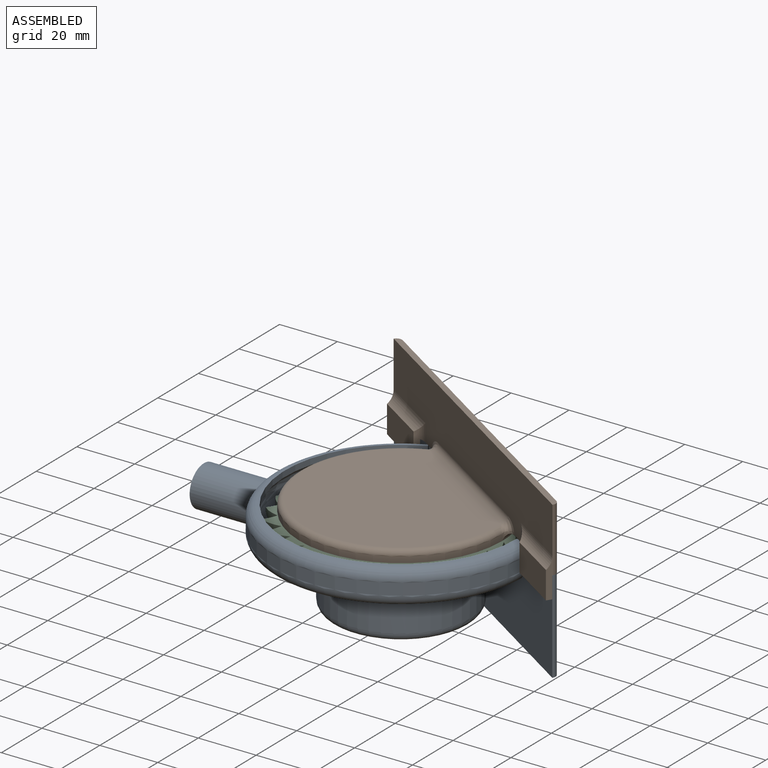
[diagram: assembled view]
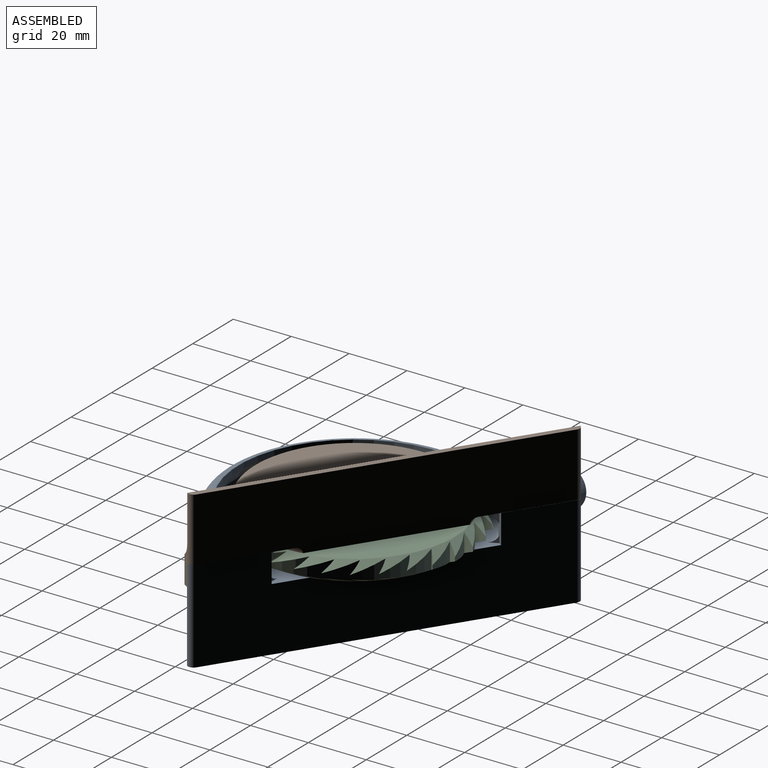
[diagram: assembled view, second angle]
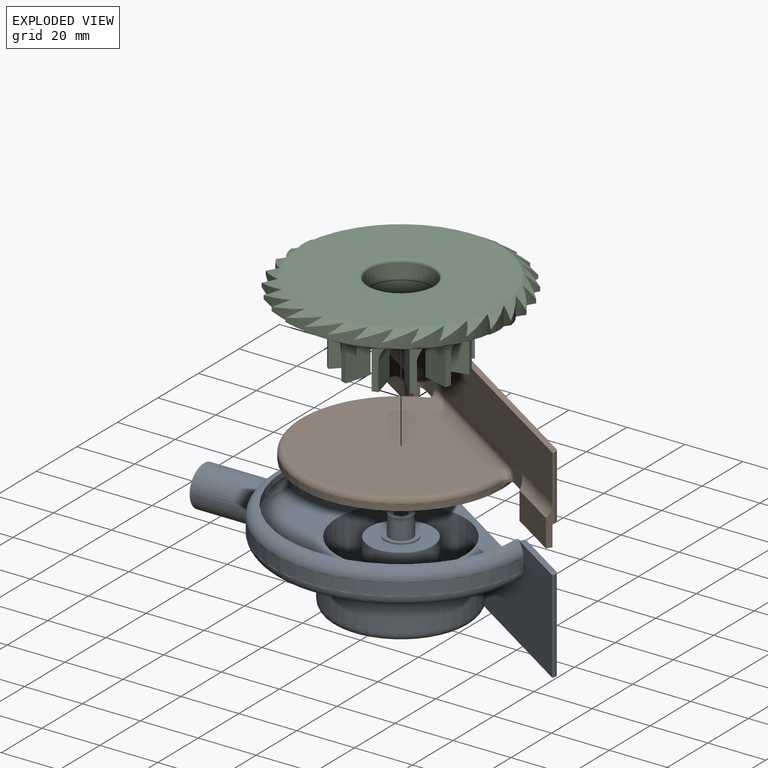
[diagram: exploded view]
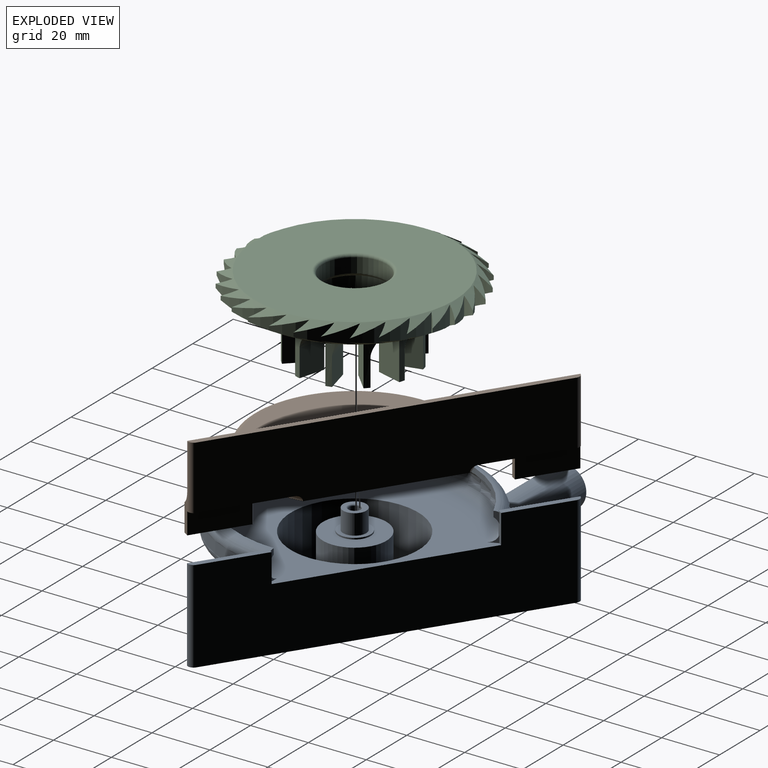
[diagram: exploded view, second angle]
ASSEMBLY  parts=3 mates=2
PART A: 43 faces, bbox 142.7x99.8x32.1 mm
  f0: plane 3.39x2.5mm, normal (0.91,0.41,0), area 2.6mm2, adj f3,f29,f39
  f1: plane 3.96x1.56mm, normal (0.91,0.41,0), area 4.5mm2, adj f21,f27,f28,f39
  f2: plane 4.1x1.76mm, normal (0,1,0), area 4.7mm2, adj f21,f27,f28,f35
  f3: plane 80.43x77.21mm, normal (0,0,1), area 2463.9mm2, adj f0,f7,f8,f29,f34,f35,f39
  f4: cylinder r=24mm len=48mm, axis (0,0,1), area 1969.9mm2, adj f5,f19,f25,f32
  f5: torus R=21mm, axis (0,0,-1), area 622.8mm2, adj f4,f18,f32
  f6: torus R=40mm, axis (0,0,1), area 1130.3mm2, adj f19,f20,f30,f31,f32
  f7: plane 3.76x2.63mm, normal (0,1,0), area 2.7mm2, adj f3,f29,f35
  f8: cylinder r=22mm len=44mm, axis (0,0,1), area 2617.7mm2, adj f3,f9,f24
  f9: plane 44x44mm, normal (0,0,1), area 1140.4mm2, adj f8,f10
  f10: cylinder r=11mm len=22mm, axis (0,0,1), area 1382.3mm2, adj f9,f11
  f11: plane 22x22mm, normal (0,0,1), area 285.1mm2, adj f10,f12
  f12: cylinder r=5.5mm len=11mm, axis (0,0,1), area 17.3mm2, adj f11,f13
  f13: plane 11x11mm, normal (0,0,1), area 44.8mm2, adj f12,f14
  f14: cylinder r=4mm len=8mm, axis (0,0,1), area 175.9mm2, adj f13,f15
  f15: plane 8x8mm, normal (0,0,1), area 30.6mm2, adj f14,f26
  f16: cylinder r=2mm len=27mm, axis (0,0,1), area 339.3mm2, adj f17,f26
  f17: plane 4x4mm, normal (0,0,1), area 12.6mm2, adj f16
  f18: plane 42x42mm, normal (0,0,-1), area 1385.4mm2, adj f5
  f19: plane 80.33x76.96mm, normal (0,0,-1), area 2396.3mm2, adj f4,f6,f30,f31,f32
  f20: cylinder r=44mm len=87.94mm, axis (0,0,1), area 737.2mm2, adj f6,f27,f32
  f21: cylinder r=40mm len=80mm, axis (0,0,1), area 343.5mm2, adj f1,f2,f27,f28
  f22: cylinder r=42mm len=83.99mm, axis (0,0,1), area 95.5mm2, adj f28,f29,f36,f38
  f23: plane 14x14mm, normal (-1,0,0), area 75.4mm2, adj f24,f25
  f24: cylinder r=5mm len=80mm, axis (1,0,0), area 2127.1mm2, adj f8,f23
  f25: cylinder r=7mm len=80mm, axis (-1,0,0), area 2868mm2, adj f4,f23
  f26: torus R=2.5mm, axis (0,0,1), area 10.8mm2, adj f15,f16
  f27: torus R=40mm, axis (0,0,1), area 1131.2mm2, adj f1,f2,f20,f21,f32,f35,f39
  f28: torus R=38mm, axis (0,0,1), area 739.3mm2, adj f1,f2,f21,f22,f35,f36,f38,f39
  f29: torus R=38mm, axis (0,0,1), area 1090.2mm2, adj f0,f3,f7,f22,f35,f36,f38,f39
  f30: plane 0.33x0.01mm, normal (0,-1,0), area 0mm2, adj f6,f19,f32
  f31: plane 0.42x0.18mm, normal (-0.91,-0.41,0), area 0mm2, adj f6,f19,f32
  f32: plane 100.58x65.45mm, normal (-0.55,-0.84,0), area 2570.2mm2, adj f4,f5,f6,f19,f20,f27,f30,f31
  f33: plane 100.9x66.36mm, normal (0,0,-1), area 238.3mm2, adj f32,f34,f41,f42
  f34: plane 97.22x63.27mm, normal (0.55,0.84,0), area 3012mm2, adj f3,f33,f35,f37,f39,f40,f41,f42
  f35: plane 10.07x1.74mm, normal (-0.84,0.55,0), area 15.7mm2, adj f2,f3,f7,f27,f28,f29,f32,f34
  f36: plane 4.94x0.65mm, normal (-0.55,-0.84,0), area 2.7mm2, adj f22,f28,f29,f35
  f37: plane 21.28x15.31mm, normal (0,0,1), area 49.1mm2, adj f32,f34,f35,f42
  f38: plane 4.94x0.65mm, normal (-0.55,-0.84,0), area 2.7mm2, adj f22,f28,f29,f39
  f39: plane 10.05x1.72mm, normal (0.84,-0.55,0), area 16.3mm2, adj f0,f1,f3,f27,f28,f29,f32,f34
  f40: plane 22.04x14.55mm, normal (0,0,1), area 49.1mm2, adj f32,f34,f39,f41
  f41: cylinder r=2mm len=32mm, axis (0,0,1), area 100.5mm2, adj f32,f33,f34,f40
  f42: cylinder r=2mm len=32mm, axis (0,0,1), area 100.5mm2, adj f32,f33,f34,f37
PART B: 37 faces, bbox 120.6x64.9x30.1 mm
  f0: plane 120x22mm, normal (0,1,0), area 2111.2mm2, adj f10,f12,f13,f25,f26,f29,f31,f32
  f1: plane 66x53mm, normal (0,0,-1), area 2944.6mm2, adj f26,f27
  f2: cylinder r=35mm len=70mm, axis (0,0,-1), area 299.9mm2, adj f4,f24,f27,f30
  f3: plane 116.6x24.6mm, normal (0,-1,0), area 2656.2mm2, adj f4,f10,f12,f13,f23,f28,f31,f32
  f4: plane 70x59mm, normal (0,0,1), area 3366.2mm2, adj f2,f3,f5,f23,f28
  f5: cylinder r=5.5mm len=11mm, axis (0,0,-1), area 17.3mm2, adj f4,f6
  f6: plane 11x11mm, normal (0,0,1), area 82.5mm2, adj f5,f7
  f7: cylinder r=2mm len=4.5mm, axis (0,0,-1), area 56.5mm2, adj f6,f22
  f8: plane 3x3mm, normal (0,0,1), area 7.1mm2, adj f22
  f9: plane 13.5x2mm, normal (-1,0,0), area 21.4mm2, adj f14,f15,f16,f32,f35
  f10: plane 31.91x4.07mm, normal (0,0,1), area 63.8mm2, adj f0,f3,f14,f17,f28,f29,f32,f36
  f11: plane 13.5x2mm, normal (1,0,0), area 21.4mm2, adj f18,f19,f20,f31,f33
  f12: plane 31.91x4.07mm, normal (0,0,1), area 63.8mm2, adj f0,f3,f18,f21,f23,f25,f31,f34
  f13: plane 120x2mm, normal (0,0,-1), area 238.3mm2, adj f0,f3,f31,f32
  f14: plane 20x7.5mm, normal (0,-1,0), area 150mm2, adj f9,f10,f15,f17
  f15: plane 20x2mm, normal (0,0,1), area 40mm2, adj f9,f14,f16,f17
  f16: plane 20x9.5mm, normal (0,1,0), area 190mm2, adj f9,f15,f17,f35,f36
  f17: plane 7.5x2mm, normal (1,0,0), area 15mm2, adj f10,f14,f15,f16
  f18: plane 20x7.5mm, normal (0,-1,0), area 150mm2, adj f11,f12,f19,f21
  f19: plane 20x2mm, normal (0,0,1), area 40mm2, adj f11,f18,f20,f21
  f20: plane 20x9.5mm, normal (0,1,0), area 190mm2, adj f11,f19,f21,f33,f34
  f21: plane 7.5x2mm, normal (-1,0,0), area 15mm2, adj f12,f18,f19,f20
  f22: torus R=1.5mm, axis (0,0,1), area 9mm2, adj f7,f8
  f23: torus R=37mm, axis (0,0,1), area 13.9mm2, adj f3,f4,f12,f24
  f24: cylinder r=2mm len=2.73mm, axis (0,0,-1), area 3.1mm2, adj f2,f23,f25
  f25: bspline ~5.07x4.78mm, area 18.3mm2, adj f0,f12,f24,f26,f27
  f26: cylinder r=2mm len=52.5mm, axis (1,0,0), area 164.9mm2, adj f0,f1,f25,f29
  f27: torus R=33mm, axis (0,0,1), area 467.1mm2, adj f1,f2,f25,f29
  f28: torus R=37mm, axis (0,0,1), area 13.9mm2, adj f3,f4,f10,f30
  f29: bspline ~5.94x4.78mm, area 18.3mm2, adj f0,f10,f26,f27,f30
  f30: cylinder r=2mm len=2.73mm, axis (0,0,-1), area 3.1mm2, adj f2,f28,f29
  f31: cylinder r=2mm len=22mm, axis (0,0,1), area 69.1mm2, adj f0,f3,f11,f12,f13
  f32: cylinder r=2mm len=22mm, axis (0,0,-1), area 69.1mm2, adj f0,f3,f9,f10,f13
  f33: cylinder r=5mm len=24mm, axis (1,0,0), area 102mm2, adj f0,f11,f20,f34
  f34: cylinder r=5mm len=6mm, axis (0,0,-1), area 18.5mm2, adj f0,f12,f20,f33
  f35: cylinder r=5mm len=24mm, axis (-1,0,0), area 102mm2, adj f0,f9,f16,f36
  f36: cylinder r=5mm len=6mm, axis (0,0,1), area 18.5mm2, adj f0,f10,f16,f35
PART C: 130 faces, bbox 78.9x78.9x27 mm
  f0: plane 69.1x69.1mm, normal (0,0,1), area 2358.1mm2, adj f33,f70
  f1: cylinder r=20.8mm len=6.56mm, axis (0,0,1), area 21.3mm2, adj f32,f33,f65,f67
  f2: cylinder r=20.8mm len=6.56mm, axis (0,0,1), area 21.3mm2, adj f32,f33,f64,f65
  f3: cylinder r=20.8mm len=6.56mm, axis (0,0,1), area 21.3mm2, adj f32,f33,f63,f64
  f4: cylinder r=20.8mm len=6.56mm, axis (0,0,1), area 21.3mm2, adj f32,f33,f62,f63
  f5: cylinder r=20.8mm len=6.56mm, axis (0,0,1), area 21.3mm2, adj f32,f33,f61,f62
  f6: cylinder r=20.8mm len=6.56mm, axis (0,0,1), area 21.3mm2, adj f32,f33,f60,f61
  f7: cylinder r=20.8mm len=6.56mm, axis (0,0,1), area 21.3mm2, adj f32,f33,f59,f60
  f8: cylinder r=20.8mm len=6.56mm, axis (0,0,1), area 21.3mm2, adj f32,f33,f58,f59
  f9: cylinder r=20.8mm len=6.56mm, axis (0,0,1), area 21.3mm2, adj f32,f33,f57,f58
  f10: cylinder r=20.8mm len=6.56mm, axis (0,0,1), area 21.3mm2, adj f32,f33,f56,f57
  f11: cylinder r=20.8mm len=6.56mm, axis (0,0,1), area 21.3mm2, adj f32,f33,f55,f56
  f12: cylinder r=20.8mm len=6.56mm, axis (0,0,1), area 21.3mm2, adj f32,f33,f54,f55
  f13: cylinder r=20.8mm len=6.56mm, axis (0,0,1), area 21.3mm2, adj f32,f33,f53,f54
  f14: cylinder r=20.8mm len=6.56mm, axis (0,0,1), area 21.3mm2, adj f32,f34,f52,f53
  f15: cylinder r=20.8mm len=6.56mm, axis (0,0,1), area 21.3mm2, adj f32,f33,f51,f52
  f16: cylinder r=20.8mm len=6.56mm, axis (0,0,1), area 21.3mm2, adj f32,f33,f50,f51
  f17: cylinder r=20.8mm len=6.56mm, axis (0,0,1), area 21.3mm2, adj f32,f33,f49,f50
  f18: cylinder r=20.8mm len=6.56mm, axis (0,0,1), area 21.3mm2, adj f32,f33,f48,f49
  f19: cylinder r=20.8mm len=6.56mm, axis (0,0,1), area 21.3mm2, adj f32,f33,f47,f48
  f20: cylinder r=20.8mm len=6.56mm, axis (0,0,1), area 21.3mm2, adj f32,f33,f46,f47
  f21: cylinder r=20.8mm len=6.56mm, axis (0,0,1), area 21.3mm2, adj f32,f33,f45,f46
  f22: cylinder r=20.8mm len=6.56mm, axis (0,0,1), area 21.3mm2, adj f32,f33,f44,f45
  f23: cylinder r=20.8mm len=6.56mm, axis (0,0,1), area 21.3mm2, adj f32,f33,f43,f44
  f24: cylinder r=20.8mm len=6.56mm, axis (0,0,1), area 21.3mm2, adj f32,f33,f42,f43
  f25: cylinder r=20.8mm len=6.56mm, axis (0,0,1), area 21.3mm2, adj f32,f33,f41,f42
  f26: cylinder r=20.8mm len=6.56mm, axis (0,0,1), area 21.3mm2, adj f32,f33,f40,f41
  f27: cylinder r=20.8mm len=6.56mm, axis (0,0,1), area 21.3mm2, adj f32,f33,f39,f40
  f28: cylinder r=20.8mm len=6.56mm, axis (0,0,1), area 21.3mm2, adj f32,f33,f38,f39
  f29: cylinder r=20.8mm len=6.56mm, axis (0,0,1), area 21.3mm2, adj f32,f33,f37,f38
  f30: cylinder r=11.05mm len=22.1mm, axis (0,0,1), area 347.1mm2, adj f35,f36
  f31: plane 69.1x69.1mm, normal (0,0,-1), area 3294mm2, adj f32,f36
  f32: cone r=40.61mm half-angle=60deg, axis (0,0,1), area 691.3mm2, adj f1,f2,f3,f4,f5,f6,f7,f8
  f33: cone r=34.55mm half-angle=60deg, axis (0,0,-1), area 685.8mm2, adj f0,f1,f2,f3,f4,f5,f6,f7
  f34: cone r=34.55mm half-angle=60deg, axis (0,0,-1), area 5.6mm2, adj f14,f33,f53
  f35: torus R=12.05mm, axis (0,0,1), area 112.6mm2, adj f30,f68
  f36: torus R=12.05mm, axis (0,0,1), area 112.6mm2, adj f30,f31
  f37: cylinder r=36.17mm len=11.25mm, axis (0,0,1), area 46mm2, adj f29,f32,f33,f66
  f38: cylinder r=36.17mm len=10.45mm, axis (0,0,1), area 45.8mm2, adj f28,f29,f32,f33
  f39: cylinder r=36.17mm len=9.19mm, axis (0,0,1), area 46mm2, adj f27,f28,f32,f33
  f40: cylinder r=36.17mm len=8.77mm, axis (0,0,1), area 46mm2, adj f26,f27,f32,f33
  f41: cylinder r=36.17mm len=10.15mm, axis (0,0,1), area 46mm2, adj f25,f26,f32,f33
  f42: cylinder r=36.17mm len=11.08mm, axis (0,0,1), area 46mm2, adj f24,f25,f32,f33
  f43: cylinder r=36.17mm len=11.53mm, axis (0,0,1), area 46mm2, adj f23,f24,f32,f33
  f44: cylinder r=36.17mm len=11.47mm, axis (0,0,1), area 46mm2, adj f22,f23,f32,f33
  f45: cylinder r=36.17mm len=10.91mm, axis (0,0,1), area 46mm2, adj f21,f22,f32,f33
  f46: cylinder r=36.17mm len=9.88mm, axis (0,0,1), area 46mm2, adj f20,f21,f32,f33
  f47: cylinder r=36.17mm len=8.41mm, axis (0,0,1), area 46mm2, adj f19,f20,f32,f33
  f48: cylinder r=36.17mm len=9.51mm, axis (0,0,1), area 46mm2, adj f18,f19,f32,f33
  f49: cylinder r=36.17mm len=10.67mm, axis (0,0,1), area 46mm2, adj f17,f18,f32,f33
  f50: cylinder r=36.17mm len=11.36mm, axis (0,0,1), area 46mm2, adj f16,f17,f32,f33
  f51: cylinder r=36.17mm len=11.56mm, axis (0,0,1), area 46mm2, adj f15,f16,f32,f33
  f52: cylinder r=36.17mm len=11.25mm, axis (0,0,1), area 46mm2, adj f14,f15,f32,f33
  f53: cylinder r=36.17mm len=10.45mm, axis (0,0,1), area 45.8mm2, adj f13,f14,f32,f33,f34
  f54: cylinder r=36.17mm len=9.19mm, axis (0,0,1), area 46mm2, adj f12,f13,f32,f33
  f55: cylinder r=36.17mm len=8.77mm, axis (0,0,1), area 46mm2, adj f11,f12,f32,f33
  f56: cylinder r=36.17mm len=10.15mm, axis (0,0,1), area 46mm2, adj f10,f11,f32,f33
  f57: cylinder r=36.17mm len=11.08mm, axis (0,0,1), area 46mm2, adj f9,f10,f32,f33
  f58: cylinder r=36.17mm len=11.53mm, axis (0,0,1), area 46mm2, adj f8,f9,f32,f33
  f59: cylinder r=36.17mm len=11.47mm, axis (0,0,1), area 46mm2, adj f7,f8,f32,f33
  f60: cylinder r=36.17mm len=10.91mm, axis (0,0,1), area 46mm2, adj f6,f7,f32,f33
  f61: cylinder r=36.17mm len=9.88mm, axis (0,0,1), area 46mm2, adj f5,f6,f32,f33
  f62: cylinder r=36.17mm len=8.41mm, axis (0,0,1), area 46mm2, adj f4,f5,f32,f33
  f63: cylinder r=36.17mm len=9.51mm, axis (0,0,1), area 46mm2, adj f3,f4,f32,f33
  f64: cylinder r=36.17mm len=10.67mm, axis (0,0,1), area 46mm2, adj f2,f3,f32,f33
  f65: cylinder r=36.17mm len=11.36mm, axis (0,0,1), area 46mm2, adj f1,f2,f32,f33
  f66: cylinder r=20.8mm len=6.56mm, axis (0,0,1), area 21.3mm2, adj f32,f33,f37,f67
  f67: cylinder r=36.17mm len=11.56mm, axis (0,0,1), area 46mm2, adj f1,f32,f33,f66
  f68: cylinder r=12.05mm len=24.1mm, axis (0,0,-1), area 853.6mm2, adj f35,f69,f71,f72,f73,f74,f75,f76
  f69: plane 9.5x9.02mm, normal (0,-1,0), area 85.7mm2, adj f68,f70,f72,f129
  f70: cylinder r=21.05mm len=42.1mm, axis (0,0,-1), area 947mm2, adj f0,f69,f71,f72,f73,f74,f75,f76
  f71: plane 18x9.02mm, normal (0,1,0), area 156.3mm2, adj f68,f70,f72,f107,f118
  f72: plane 9.04x2mm, normal (0,0,1), area 18mm2, adj f68,f69,f70,f71
  f73: plane 9.5x7.81mm, normal (-0.5,-0.87,0), area 85.7mm2, adj f68,f70,f75,f128
  f74: plane 18x7.81mm, normal (0.5,0.87,0), area 156.3mm2, adj f68,f70,f75,f117,f129
  f75: plane 8.81x6.24mm, normal (0,0,1), area 18mm2, adj f68,f70,f73,f74
  f76: plane 9.5x7.81mm, normal (-0.87,-0.5,0), area 85.7mm2, adj f68,f70,f78,f127
  f77: plane 18x7.81mm, normal (0.87,0.5,0), area 156.3mm2, adj f68,f70,f78,f116,f128
  f78: plane 8.81x6.24mm, normal (0,0,1), area 18mm2, adj f68,f70,f76,f77
  f79: plane 9.5x9.02mm, normal (-1,0,0), area 85.7mm2, adj f68,f70,f81,f126
  f80: plane 18x9.02mm, normal (1,0,0), area 156.3mm2, adj f68,f70,f81,f115,f127
  f81: plane 9.04x2mm, normal (0,0,1), area 18mm2, adj f68,f70,f79,f80
  f82: plane 9.5x7.81mm, normal (-0.87,0.5,0), area 85.7mm2, adj f68,f70,f84,f125
  f83: plane 18x7.81mm, normal (0.87,-0.5,0), area 156.3mm2, adj f68,f70,f84,f114,f126
  f84: plane 8.81x6.24mm, normal (0,0,1), area 18mm2, adj f68,f70,f82,f83
  f85: plane 9.5x7.81mm, normal (-0.5,0.87,0), area 85.7mm2, adj f68,f70,f87,f124
  f86: plane 18x7.81mm, normal (0.5,-0.87,0), area 156.3mm2, adj f68,f70,f87,f113,f125
  f87: plane 8.81x6.24mm, normal (0,0,1), area 18mm2, adj f68,f70,f85,f86
  f88: plane 9.5x9.02mm, normal (0,1,0), area 85.7mm2, adj f68,f70,f90,f123
  f89: plane 18x9.02mm, normal (0,-1,0), area 156.3mm2, adj f68,f70,f90,f112,f124
  f90: plane 9.04x2mm, normal (0,0,1), area 18mm2, adj f68,f70,f88,f89
  f91: plane 9.5x7.81mm, normal (0.5,0.87,0), area 85.7mm2, adj f68,f70,f93,f122
  f92: plane 18x7.81mm, normal (-0.5,-0.87,0), area 156.3mm2, adj f68,f70,f93,f111,f123
  f93: plane 8.81x6.24mm, normal (0,0,1), area 18mm2, adj f68,f70,f91,f92
  f94: plane 9.5x7.81mm, normal (0.87,0.5,0), area 85.7mm2, adj f68,f70,f96,f121
  f95: plane 18x7.81mm, normal (-0.87,-0.5,0), area 156.3mm2, adj f68,f70,f96,f110,f122
  f96: plane 8.81x6.24mm, normal (0,0,1), area 18mm2, adj f68,f70,f94,f95
  f97: plane 9.5x9.02mm, normal (1,0,0), area 85.7mm2, adj f68,f70,f99,f120
  f98: plane 18x9.02mm, normal (-1,0,0), area 156.3mm2, adj f68,f70,f99,f109,f121
  f99: plane 9.04x2mm, normal (0,0,1), area 18mm2, adj f68,f70,f97,f98
  f100: plane 9.5x7.81mm, normal (0.87,-0.5,0), area 85.7mm2, adj f68,f70,f102,f119
  f101: plane 18x7.81mm, normal (-0.87,0.5,0), area 156.3mm2, adj f68,f70,f102,f108,f120
  f102: plane 8.81x6.24mm, normal (0,0,1), area 18mm2, adj f68,f70,f100,f101
  f103: plane 9.5x7.81mm, normal (0.5,-0.87,0), area 85.7mm2, adj f68,f70,f105,f118
  f104: plane 18x7.81mm, normal (-0.5,0.87,0), area 156.3mm2, adj f68,f70,f105,f106,f119
  f105: plane 8.81x6.24mm, normal (0,0,1), area 18mm2, adj f68,f70,f103,f104
  f106: plane 0.29x0.25mm, normal (0,0,1), area 0mm2, adj f70,f104,f119
  f107: plane 0.29x0.17mm, normal (0,0,1), area 0mm2, adj f70,f71,f118
  f108: plane 0.33x0.15mm, normal (0,0,1), area 0mm2, adj f70,f101,f120
  f109: plane 0.29x0.17mm, normal (0,0,1), area 0mm2, adj f70,f98,f121
  f110: plane 0.29x0.25mm, normal (0,0,1), area 0mm2, adj f70,f95,f122
  f111: plane 0.33x0.15mm, normal (0,0,1), area 0mm2, adj f70,f92,f123
  f112: plane 0.29x0.17mm, normal (0,0,1), area 0mm2, adj f70,f89,f124
  f113: plane 0.29x0.25mm, normal (0,0,1), area 0mm2, adj f70,f86,f125
  f114: plane 0.33x0.15mm, normal (0,0,1), area 0mm2, adj f70,f83,f126
  f115: plane 0.29x0.17mm, normal (0,0,1), area 0mm2, adj f70,f80,f127
  f116: plane 0.29x0.25mm, normal (0,0,1), area 0mm2, adj f70,f77,f128
  f117: plane 0.33x0.15mm, normal (0,0,1), area 0mm2, adj f70,f74,f129
  f118: bspline ~13.41x12.65mm, area 98.3mm2, adj f68,f70,f71,f103,f107
  f119: bspline ~13.02x12.42mm, area 98.3mm2, adj f68,f70,f100,f104,f106
  f120: bspline ~10.58x8.5mm, area 98.3mm2, adj f68,f70,f97,f101,f108
  f121: bspline ~13.41x12.65mm, area 98.3mm2, adj f68,f70,f94,f98,f109
  f122: bspline ~13.02x12.42mm, area 98.3mm2, adj f68,f70,f91,f95,f110
  f123: bspline ~10.58x8.5mm, area 98.3mm2, adj f68,f70,f88,f92,f111
  f124: bspline ~13.41x12.65mm, area 98.3mm2, adj f68,f70,f85,f89,f112
  f125: bspline ~13.02x12.42mm, area 98.3mm2, adj f68,f70,f82,f86,f113
  f126: bspline ~10.58x8.5mm, area 98.3mm2, adj f68,f70,f79,f83,f114
  f127: bspline ~13.41x12.65mm, area 98.3mm2, adj f68,f70,f76,f80,f115
  f128: bspline ~13.02x12.42mm, area 98.3mm2, adj f68,f70,f73,f77,f116
  f129: bspline ~10.58x8.5mm, area 98.3mm2, adj f68,f69,f70,f74,f117
PLACE A t=(0,0,2)mm
PLACE B rot(axis=(-0.96,0.28,0),180deg) t=(176.59,60.5,34)mm
PLACE C rot(axis=(0.92,-0.39,0),180deg) t=(0,0,26)mm
MATE cylindrical B.f2 <-> A.f4  axis (0,0,-1) through (0,0,24.5)mm
MATE revolute C.f32 <-> A.f4  axis (0,0,-1) through (0,0,26)mm
